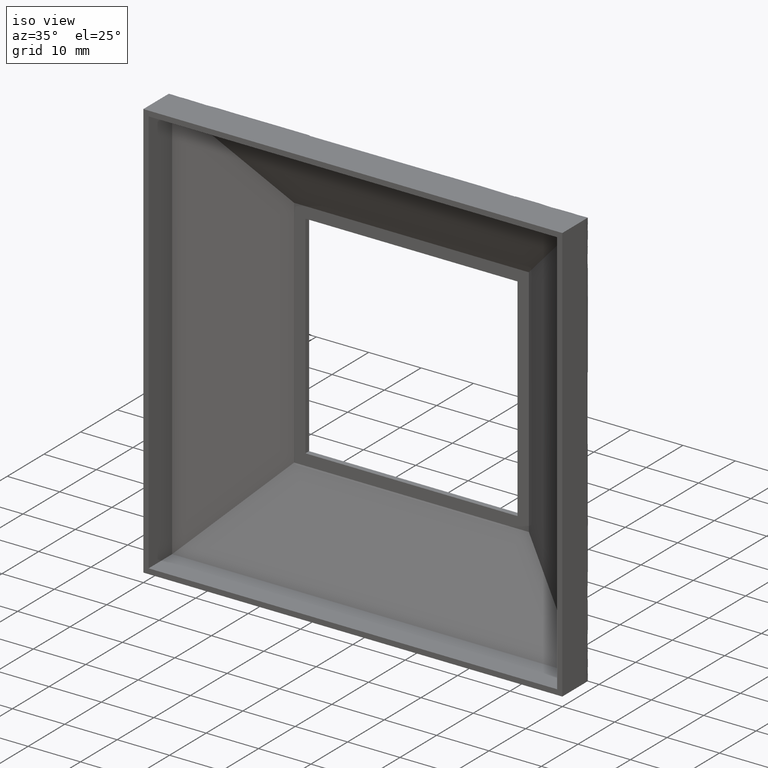
[diagram: clean part render]
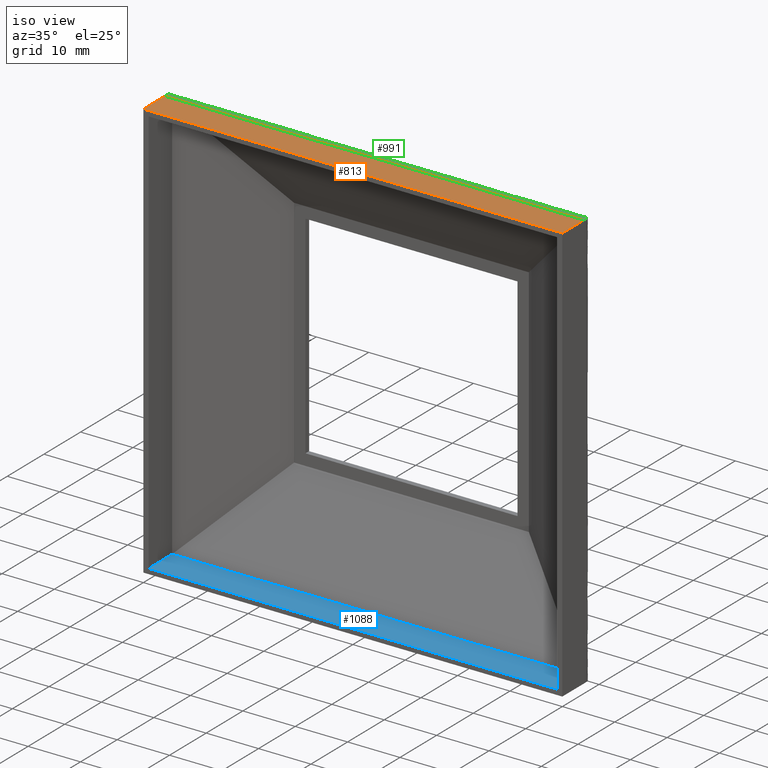
[diagram: same view with three faces highlighted in distinct colors, each labeled with its STEP entity id]
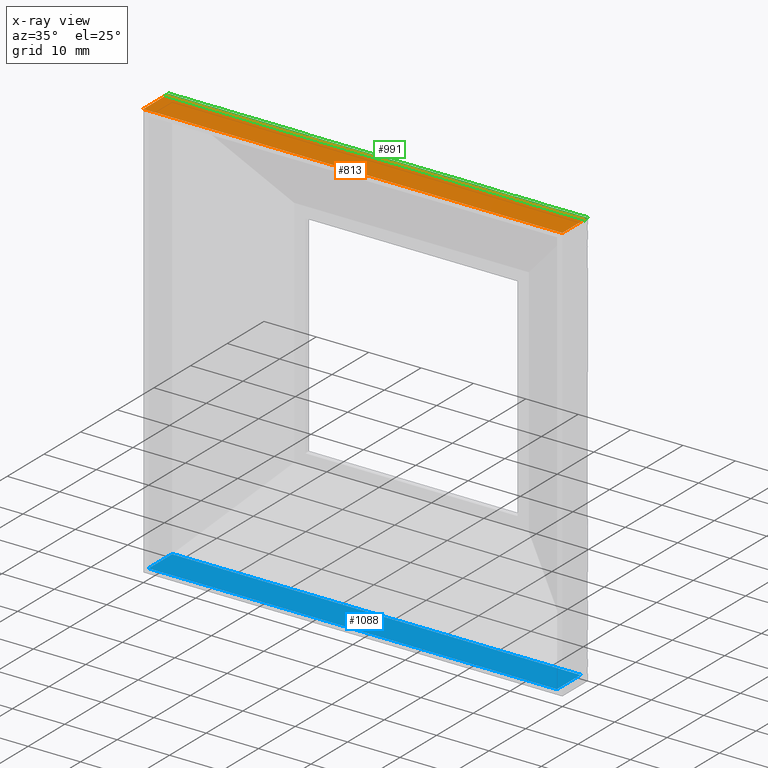
[diagram: x-ray of the same camera — body ghosted, the three highlighted faces saturated]
A machine part, iso view with three faces highlighted in distinct colors.
The next image is the same camera in x-ray (body ghosted, the three faces saturated) — at least one of them is partly hidden behind the body in this view.
Their STEP definitions:

[orange] entity #813 — the highlighted planar face has unit normal (0, 0, -1).
#50 = ORIENTED_EDGE ( 'NONE', *, *, #943, .F. ) ;
#117 = VERTEX_POINT ( 'NONE', #457 ) ;
#145 = ORIENTED_EDGE ( 'NONE', *, *, #489, .T. ) ;
#180 = EDGE_LOOP ( 'NONE', ( #50, #917, #145, #981 ) ) ;
#226 = VECTOR ( 'NONE', #421, 1000.000000000000000 ) ;
#246 = VERTEX_POINT ( 'NONE', #274 ) ;
#264 = FACE_OUTER_BOUND ( 'NONE', #180, .T. ) ;
#274 = CARTESIAN_POINT ( 'NONE',  ( -40.00000000000001400, 0.0000000000000000000, 39.99999999999999300 ) ) ;
#284 = EDGE_CURVE ( 'NONE', #560, #117, #375, .T. ) ;
#320 = AXIS2_PLACEMENT_3D ( 'NONE', #578, #748, #842 ) ;
#375 = B_SPLINE_CURVE_WITH_KNOTS ( 'NONE', 3,
 ( #872, #1052, #433, #928 ),
 .UNSPECIFIED., .F., .F.,
 ( 4, 4 ),
 ( 0.0000000000000000000, 1.000000000000000000 ),
 .UNSPECIFIED. ) ;
#384 = CARTESIAN_POINT ( 'NONE',  ( -40.00000000000001400, 0.0000000000000000000, 39.99999999999999300 ) ) ;
#391 = DIRECTION ( 'NONE',  ( 1.000000000000000000, 0.0000000000000000000, 0.0000000000000000000 ) ) ;
#412 = VECTOR ( 'NONE', #391, 1000.000000000000000 ) ;
#421 = DIRECTION ( 'NONE',  ( -0.0000000000000000000, -1.000000000000000000, -0.0000000000000000000 ) ) ;
#433 = CARTESIAN_POINT ( 'NONE',  ( -13.33333333333334600, 5.845299461620747600, 39.99999999999999300 ) ) ;
#457 = CARTESIAN_POINT ( 'NONE',  ( -40.00000000000001400, 5.845299461620747600, 39.99999999999999300 ) ) ;
#489 = EDGE_CURVE ( 'NONE', #117, #246, #689, .T. ) ;
#499 = VECTOR ( 'NONE', #584, 1000.000000000000000 ) ;
#510 = CARTESIAN_POINT ( 'NONE',  ( 39.99999999999998600, 7.000000000000000000, 39.99999999999999300 ) ) ;
#560 = VERTEX_POINT ( 'NONE', #994 ) ;
#578 = CARTESIAN_POINT ( 'NONE',  ( -40.00000000000001400, 7.000000000000000000, 39.99999999999999300 ) ) ;
#584 = DIRECTION ( 'NONE',  ( -0.0000000000000000000, -1.000000000000000000, -0.0000000000000000000 ) ) ;
#650 = CARTESIAN_POINT ( 'NONE',  ( 39.99999999999998600, 0.0000000000000000000, 39.99999999999999300 ) ) ;
#689 = LINE ( 'NONE', #1031, #226 ) ;
#727 = LINE ( 'NONE', #510, #499 ) ;
#748 = DIRECTION ( 'NONE',  ( 0.0000000000000000000, 0.0000000000000000000, -1.000000000000000000 ) ) ;
#773 = LINE ( 'NONE', #384, #412 ) ;
#813 = ADVANCED_FACE ( 'NONE', ( #264 ), #1097, .F. ) ;
#842 = DIRECTION ( 'NONE',  ( -1.000000000000000000, 0.0000000000000000000, -0.0000000000000000000 ) ) ;
#872 = CARTESIAN_POINT ( 'NONE',  ( 39.99999999999998600, 5.845299461620747600, 39.99999999999999300 ) ) ;
#917 = ORIENTED_EDGE ( 'NONE', *, *, #284, .T. ) ;
#928 = CARTESIAN_POINT ( 'NONE',  ( -40.00000000000001400, 5.845299461620747600, 39.99999999999999300 ) ) ;
#943 = EDGE_CURVE ( 'NONE', #560, #1008, #727, .T. ) ;
#981 = ORIENTED_EDGE ( 'NONE', *, *, #1039, .T. ) ;
#994 = CARTESIAN_POINT ( 'NONE',  ( 39.99999999999998600, 5.845299461620747600, 39.99999999999999300 ) ) ;
#1008 = VERTEX_POINT ( 'NONE', #650 ) ;
#1031 = CARTESIAN_POINT ( 'NONE',  ( -40.00000000000001400, 7.000000000000000000, 39.99999999999999300 ) ) ;
#1039 = EDGE_CURVE ( 'NONE', #246, #1008, #773, .T. ) ;
#1052 = CARTESIAN_POINT ( 'NONE',  ( 13.33333333333331100, 5.845299461620747600, 39.99999999999999300 ) ) ;
#1097 = PLANE ( 'NONE',  #320 ) ;

[blue] entity #1088 — the highlighted planar face has unit normal (0, 0, 1).
#42 = LINE ( 'NONE', #51, #806 ) ;
#51 = CARTESIAN_POINT ( 'NONE',  ( 38.99999999999998600, 7.000000000000000000, -39.00000000000000700 ) ) ;
#52 = VECTOR ( 'NONE', #69, 1000.000000000000000 ) ;
#69 = DIRECTION ( 'NONE',  ( -1.000000000000000000, 0.0000000000000000000, -0.0000000000000000000 ) ) ;
#177 = EDGE_CURVE ( 'NONE', #743, #270, #305, .T. ) ;
#257 = VERTEX_POINT ( 'NONE', #675 ) ;
#270 = VERTEX_POINT ( 'NONE', #967 ) ;
#280 = ORIENTED_EDGE ( 'NONE', *, *, #998, .F. ) ;
#305 = LINE ( 'NONE', #579, #52 ) ;
#329 = DIRECTION ( 'NONE',  ( -0.0000000000000000000, -1.000000000000000000, 0.0000000000000000000 ) ) ;
#333 = DIRECTION ( 'NONE',  ( 0.0000000000000000000, 0.0000000000000000000, 1.000000000000000000 ) ) ;
#334 = CARTESIAN_POINT ( 'NONE',  ( 0.0000000000000000000, -0.0000000000000000000, -39.00000000000000700 ) ) ;
#337 = DIRECTION ( 'NONE',  ( 1.000000000000000000, 0.0000000000000000000, -0.0000000000000000000 ) ) ;
#362 = AXIS2_PLACEMENT_3D ( 'NONE', #666, #333, #337 ) ;
#363 = ORIENTED_EDGE ( 'NONE', *, *, #860, .T. ) ;
#439 = CARTESIAN_POINT ( 'NONE',  ( -39.00000000000001400, 0.0000000000000000000, -39.00000000000000700 ) ) ;
#579 = CARTESIAN_POINT ( 'NONE',  ( 39.99999999999998600, 6.422649730810371200, -39.00000000000000700 ) ) ;
#605 = ORIENTED_EDGE ( 'NONE', *, *, #959, .F. ) ;
#630 = VERTEX_POINT ( 'NONE', #439 ) ;
#666 = CARTESIAN_POINT ( 'NONE',  ( -40.00000000000001400, 7.000000000000000000, -39.00000000000000700 ) ) ;
#675 = CARTESIAN_POINT ( 'NONE',  ( 38.99999999999998600, 0.0000000000000000000, -39.00000000000000700 ) ) ;
#743 = VERTEX_POINT ( 'NONE', #923 ) ;
#756 = VECTOR ( 'NONE', #904, 1000.000000000000000 ) ;
#806 = VECTOR ( 'NONE', #1085, 1000.000000000000000 ) ;
#836 = CARTESIAN_POINT ( 'NONE',  ( -39.00000000000001400, 7.000000000000000000, -39.00000000000000700 ) ) ;
#850 = PLANE ( 'NONE',  #362 ) ;
#860 = EDGE_CURVE ( 'NONE', #270, #630, #948, .T. ) ;
#904 = DIRECTION ( 'NONE',  ( -1.000000000000000000, 0.0000000000000000000, 0.0000000000000000000 ) ) ;
#923 = CARTESIAN_POINT ( 'NONE',  ( 38.99999999999998600, 6.422649730810371200, -39.00000000000000700 ) ) ;
#941 = ORIENTED_EDGE ( 'NONE', *, *, #177, .T. ) ;
#948 = LINE ( 'NONE', #836, #951 ) ;
#951 = VECTOR ( 'NONE', #329, 1000.000000000000000 ) ;
#959 = EDGE_CURVE ( 'NONE', #257, #630, #1047, .T. ) ;
#967 = CARTESIAN_POINT ( 'NONE',  ( -39.00000000000001400, 6.422649730810371200, -39.00000000000000700 ) ) ;
#969 = EDGE_LOOP ( 'NONE', ( #605, #280, #941, #363 ) ) ;
#997 = FACE_OUTER_BOUND ( 'NONE', #969, .T. ) ;
#998 = EDGE_CURVE ( 'NONE', #743, #257, #42, .T. ) ;
#1047 = LINE ( 'NONE', #334, #756 ) ;
#1085 = DIRECTION ( 'NONE',  ( 0.0000000000000000000, -1.000000000000000000, 0.0000000000000000000 ) ) ;
#1088 = ADVANCED_FACE ( 'NONE', ( #997 ), #850, .T. ) ;

[green] entity #991 — the highlighted face is a freeform B-spline surface patch.
#1 = CARTESIAN_POINT ( 'NONE',  ( -39.09123091585236400, 7.524678075363859800, 39.09123091585233600 ) ) ;
#2 = CARTESIAN_POINT ( 'NONE',  ( 39.99999999999998600, 5.845299461620747600, 39.99999999999999300 ) ) ;
#5 = CARTESIAN_POINT ( 'NONE',  ( 39.64549428500631500, 7.203546635178052600, 39.64549428500630100 ) ) ;
#6 = CARTESIAN_POINT ( 'NONE',  ( -39.87809691855075300, 7.064370622308370400, 39.87771418031156400 ) ) ;
#7 = CARTESIAN_POINT ( 'NONE',  ( 39.99996341238345800, 6.085659425924157000, 39.99999723084649600 ) ) ;
#10 = CARTESIAN_POINT ( 'NONE',  ( -39.99751736766462800, 6.764946561274729000, 39.99929109669742600 ) ) ;
#17 = CARTESIAN_POINT ( 'NONE',  ( 39.83371574877211400, 7.092024464092707700, 39.83311883128395400 ) ) ;
#30 = VERTEX_POINT ( 'NONE', #275 ) ;
#33 = CARTESIAN_POINT ( 'NONE',  ( -39.00000000000000700, 7.577350269189627100, 38.99999999999998600 ) ) ;
#35 = CARTESIAN_POINT ( 'NONE',  ( -39.45156041968495900, 7.316284761409308500, 39.45153673475578400 ) ) ;
#64 = CARTESIAN_POINT ( 'NONE',  ( -40.00000000000001400, 5.845299461620747600, 39.99999999999999300 ) ) ;
#90 = CARTESIAN_POINT ( 'NONE',  ( 39.42082463572623400, 7.334093281667203500, 39.42081062329855000 ) ) ;
#91 = CARTESIAN_POINT ( 'NONE',  ( 39.57077457730813600, 7.247088283422290700, 39.57048900840661100 ) ) ;
#95 = CARTESIAN_POINT ( 'NONE',  ( -39.76131484914823500, 7.135506423905171800, 39.75942958104554500 ) ) ;
#102 = CARTESIAN_POINT ( 'NONE',  ( 39.64509293597702600, 7.203780878233273700, 39.64509170071829700 ) ) ;
#106 = CARTESIAN_POINT ( 'NONE',  ( 39.97517742524684100, 6.982355415199969600, 39.97731509431868300 ) ) ;
#117 = VERTEX_POINT ( 'NONE', #457 ) ;
#123 = EDGE_CURVE ( 'NONE', #30, #752, #827, .T. ) ;
#125 = CARTESIAN_POINT ( 'NONE',  ( -39.53478131572512700, 7.268007053435302300, 39.53447339406841400 ) ) ;
#140 = CARTESIAN_POINT ( 'NONE',  ( -14.66666666666669300, 7.577350269189627100, 38.99999999999998600 ) ) ;
#149 = CARTESIAN_POINT ( 'NONE',  ( -39.99957727566572900, 6.442287349026074100, 39.99994461692946100 ) ) ;
#153 = CARTESIAN_POINT ( 'NONE',  ( -39.99996341238347200, 6.085659425924182700, 39.99999723084645400 ) ) ;
#154 = ORIENTED_EDGE ( 'NONE', *, *, #596, .F. ) ;
#176 = CARTESIAN_POINT ( 'NONE',  ( 39.81270341167213200, 7.104799565412038800, 39.81148846067691200 ) ) ;
#178 =( BOUNDED_SURFACE ( )  B_SPLINE_SURFACE ( 2, 3, ( 
 ( #388, #726, #730, #212 ),
 ( #990, #642, #293, #645 ),
 ( #481, #557, #140, #812 ) ),
 .UNSPECIFIED., .F., .F., .T. ) 
 B_SPLINE_SURFACE_WITH_KNOTS ( ( 3, 3 ),
 ( 4, 4 ),
 ( 0.0000000000000000000, 1.000000000000000000 ),
 ( -0.08400000000000000500, 0.004000000000000000100 ),
 .UNSPECIFIED. ) 
 GEOMETRIC_REPRESENTATION_ITEM ( )  RATIONAL_B_SPLINE_SURFACE ( (
 ( 1.000000000000000000, 1.000000000000000000, 1.000000000000000000, 1.000000000000000000),
 ( 17.32050807568875700, 17.32050807568875700, 17.32050807568875700, 17.32050807568875700),
 ( 1.000000000000000000, 1.000000000000000000, 1.000000000000000000, 1.000000000000000000) ) ) 
 REPRESENTATION_ITEM ( '' )  SURFACE ( )  );
#181 = CARTESIAN_POINT ( 'NONE',  ( 39.84356973980662500, 7.085993576816493400, 39.84327415620617100 ) ) ;
#183 = CARTESIAN_POINT ( 'NONE',  ( -39.74141379276093000, 7.147281429885686600, 39.73973045092380100 ) ) ;
#184 = CARTESIAN_POINT ( 'NONE',  ( -39.99902396824695200, 6.596248776930460500, 39.99982277417433400 ) ) ;
#186 = CARTESIAN_POINT ( 'NONE',  ( -39.99042132576797600, 6.922317819495430200, 39.99415154775400800 ) ) ;
#188 = CARTESIAN_POINT ( 'NONE',  ( 39.85835442357306100, 7.076826527202265500, 39.85833009332956300 ) ) ;
#192 = CARTESIAN_POINT ( 'NONE',  ( 39.51678468493357600, 7.278466438441795600, 39.51646558689930100 ) ) ;
#202 = ORIENTED_EDGE ( 'NONE', *, *, #517, .F. ) ;
#212 = CARTESIAN_POINT ( 'NONE',  ( -44.00000000000002800, 5.845299461620747600, 39.99999999999999300 ) ) ;
#253 = CARTESIAN_POINT ( 'NONE',  ( 38.99999999999997900, 7.577350269189627100, 38.99999999999998600 ) ) ;
#256 = CARTESIAN_POINT ( 'NONE',  ( -39.00000000000000700, 7.577350269189627100, 38.99999999999998600 ) ) ;
#261 = CARTESIAN_POINT ( 'NONE',  ( 39.95565794252261300, 7.007990852186007500, 39.95463018863734600 ) ) ;
#263 = CARTESIAN_POINT ( 'NONE',  ( -39.70853835767439200, 7.166629691804799600, 39.70754231421604900 ) ) ;
#269 = CARTESIAN_POINT ( 'NONE',  ( -39.99840422463032000, 6.686804960064426600, 39.99963447173460900 ) ) ;
#271 = CARTESIAN_POINT ( 'NONE',  ( 39.98912708443194900, 6.931546638542998900, 39.99291096697459800 ) ) ;
#272 = CARTESIAN_POINT ( 'NONE',  ( 39.99042132576793300, 6.922317819495413400, 39.99415154775402900 ) ) ;
#275 = CARTESIAN_POINT ( 'NONE',  ( -39.00000000000000700, 7.577350269189627100, 38.99999999999998600 ) ) ;
#284 = EDGE_CURVE ( 'NONE', #560, #117, #375, .T. ) ;
#286 = CARTESIAN_POINT ( 'NONE',  ( -39.67025470056021400, 7.189073698605573900, 39.67008737962260800 ) ) ;
#293 = CARTESIAN_POINT ( 'NONE',  ( -14.66666666666667900, 7.000000000000000900, 39.99999999999999300 ) ) ;
#314 = CARTESIAN_POINT ( 'NONE',  ( 38.99999999999997900, 7.577350269189627100, 38.99999999999998600 ) ) ;
#316 = CARTESIAN_POINT ( 'NONE',  ( -40.00000000000002100, 5.990232302823559800, 40.00000000000000700 ) ) ;
#319 = CARTESIAN_POINT ( 'NONE',  ( -39.99986259767117500, 6.240508034974398700, 39.99998615423236700 ) ) ;
#344 = CARTESIAN_POINT ( 'NONE',  ( 39.38430061226790700, 7.355245143125852500, 39.38410355360567600 ) ) ;
#347 = CARTESIAN_POINT ( 'NONE',  ( -39.89200705829500000, 7.055378498140478300, 39.89082889140854600 ) ) ;
#350 = CARTESIAN_POINT ( 'NONE',  ( 39.99751736766462100, 6.764946561274698800, 39.99929109669745500 ) ) ;
#351 = CARTESIAN_POINT ( 'NONE',  ( -39.94303102127709300, 7.019107698105665700, 39.94045212258647800 ) ) ;
#353 = CARTESIAN_POINT ( 'NONE',  ( 39.86247275930689700, 7.074251190670509900, 39.86247275930691100 ) ) ;
#356 = CARTESIAN_POINT ( 'NONE',  ( -39.98912708443199200, 6.931546638543013100, 39.99291096697458400 ) ) ;
#358 = CARTESIAN_POINT ( 'NONE',  ( 39.99555916357955700, 6.844323200558992700, 39.99822774174364800 ) ) ;
#360 = CARTESIAN_POINT ( 'NONE',  ( 39.09123091585233600, 7.524678075363865100, 39.09123091585232900 ) ) ;
#375 = B_SPLINE_CURVE_WITH_KNOTS ( 'NONE', 3,
 ( #872, #1052, #433, #928 ),
 .UNSPECIFIED., .F., .F.,
 ( 4, 4 ),
 ( 0.0000000000000000000, 1.000000000000000000 ),
 .UNSPECIFIED. ) ;
#378 = CARTESIAN_POINT ( 'NONE',  ( -39.58877120809969300, 7.236628898415800900, 39.58849681557568800 ) ) ;
#388 = CARTESIAN_POINT ( 'NONE',  ( 43.99999999999999300, 5.845299461620747600, 39.99999999999999300 ) ) ;
#409 = B_SPLINE_CURVE_WITH_KNOTS ( 'NONE', 3,
 ( #64, #316, #153, #319, #919, #149, #952, #184, #437, #269, #956, #10, #1041, #522, #607, #866, #701, #186, #356, #443, #780, #861, #351, #1040, #434, #347, #698, #6, #946, #1036, #518, #949, #778, #604, #95, #183, #263, #807, #978, #286, #462, #890, #976, #1065, #378, #125, #541, #627, #548, #35, #633, #1030, #940, #428, #513, #597, #1, #256 ),
 .UNSPECIFIED., .F., .F.,
 ( 4, 2, 2, 2, 2, 2, 2, 2, 2, 2, 2, 2, 2, 2, 1, 2, 2, 2, 2, 2, 1, 2, 2, 2, 2, 1, 1, 2, 2, 2, 4 ),
 ( 0.0000000000000000000, 0.003906250000001252500, 0.007812500000002504900, 0.01562500000000500600, 0.02343750000000751100, 0.03125000000001001300, 0.04687500000001537700, 0.06250000000002074700, 0.09375000000003122500, 0.1250000000000417200, 0.2500000000000630600, 0.3750000000000843800, 0.4375000000001149600, 0.4687500000001214000, 0.4843750000001330600, 0.4921875000001309500, 0.5000000000001287900, 0.5625000000000941500, 0.5937500000000741600, 0.6093750000000639500, 0.6171875000000569500, 0.6210937500000518500, 0.6250000000000466300, 0.6874999999999733500, 0.7187499999999342700, 0.7343749999999168400, 0.7421874999999102900, 0.7460937499999073000, 0.7499999999999041900, 0.8749999999999521500, 1.000000000000000000 ),
 .UNSPECIFIED. ) ;
#426 = EDGE_LOOP ( 'NONE', ( #154, #705, #202, #1123 ) ) ;
#428 = CARTESIAN_POINT ( 'NONE',  ( -39.37957948292938700, 7.357990168095132500, 39.37957948293475900 ) ) ;
#432 = CARTESIAN_POINT ( 'NONE',  ( 39.61165123492553200, 7.223289697585885300, 39.61153802379626400 ) ) ;
#433 = CARTESIAN_POINT ( 'NONE',  ( -13.33333333333334600, 5.845299461620747600, 39.99999999999999300 ) ) ;
#434 = CARTESIAN_POINT ( 'NONE',  ( -39.90782867440396600, 7.044854804303077400, 39.90571586076194400 ) ) ;
#435 = CARTESIAN_POINT ( 'NONE',  ( 39.88657547159331100, 7.059130726600718800, 39.88657547159332500 ) ) ;
#437 = CARTESIAN_POINT ( 'NONE',  ( -39.99882256608204000, 6.630352811135289000, 39.99976739110383100 ) ) ;
#438 = CARTESIAN_POINT ( 'NONE',  ( 39.90894283487896400, 7.044512754529310300, 39.90642476406451100 ) ) ;
#443 = CARTESIAN_POINT ( 'NONE',  ( -39.98218343734280500, 6.970513496206457700, 39.98582193394916100 ) ) ;
#449 = CARTESIAN_POINT ( 'NONE',  ( 39.42977556190546600, 7.328907971101167500, 39.42977556191085100 ) ) ;
#457 = CARTESIAN_POINT ( 'NONE',  ( -40.00000000000001400, 5.845299461620747600, 39.99999999999999300 ) ) ;
#462 = CARTESIAN_POINT ( 'NONE',  ( -39.66103069461726000, 7.194467838310624000, 39.66096807232607100 ) ) ;
#481 = CARTESIAN_POINT ( 'NONE',  ( 43.99999999999999300, 7.577350269189627100, 38.99999999999998600 ) ) ;
#513 = CARTESIAN_POINT ( 'NONE',  ( -39.31801750310690800, 7.393613030765489900, 39.31706422820501200 ) ) ;
#514 = CARTESIAN_POINT ( 'NONE',  ( 39.64152615410345200, 7.205863582545781300, 39.64152033545722300 ) ) ;
#515 = CARTESIAN_POINT ( 'NONE',  ( 39.99902396824695900, 6.596248776930417000, 39.99982277417438300 ) ) ;
#517 = EDGE_CURVE ( 'NONE', #752, #560, #888, .T. ) ;
#518 = CARTESIAN_POINT ( 'NONE',  ( -39.86673021899161300, 7.071578108131816100, 39.86671510250803900 ) ) ;
#521 = CARTESIAN_POINT ( 'NONE',  ( 39.99986259767116100, 6.240508034974361400, 39.99998615423237400 ) ) ;
#522 = CARTESIAN_POINT ( 'NONE',  ( -39.99606809670005700, 6.829461214447474200, 39.99853788693850000 ) ) ;
#525 = CARTESIAN_POINT ( 'NONE',  ( 39.99882256608201900, 6.630352811135248100, 39.99976739110385900 ) ) ;
#541 = CARTESIAN_POINT ( 'NONE',  ( -39.51573587348468700, 7.279065571622101800, 39.51547296126601300 ) ) ;
#548 = CARTESIAN_POINT ( 'NONE',  ( -39.47019857336264400, 7.305481264779079900, 39.47011634517333100 ) ) ;
#557 = CARTESIAN_POINT ( 'NONE',  ( 14.66666666666666400, 7.577350269189627100, 38.99999999999998600 ) ) ;
#560 = VERTEX_POINT ( 'NONE', #994 ) ;
#596 = EDGE_CURVE ( 'NONE', #117, #30, #409, .T. ) ;
#597 = CARTESIAN_POINT ( 'NONE',  ( -39.17403583188111300, 7.476845966874890300, 39.17288994466378700 ) ) ;
#598 = CARTESIAN_POINT ( 'NONE',  ( 39.58772518521781300, 7.237226424501707300, 39.58750418994242900 ) ) ;
#602 = CARTESIAN_POINT ( 'NONE',  ( 39.74350006670750400, 7.146122507496129600, 39.74149007860729900 ) ) ;
#604 = CARTESIAN_POINT ( 'NONE',  ( -39.81475919647045500, 7.103658173132253700, 39.81324808836032500 ) ) ;
#606 = CARTESIAN_POINT ( 'NONE',  ( 39.99999999999997900, 5.990232302823534900, 40.00000000000000700 ) ) ;
#607 = CARTESIAN_POINT ( 'NONE',  ( -39.99555916357959300, 6.844323200559016700, 39.99822774174362600 ) ) ;
#608 = CARTESIAN_POINT ( 'NONE',  ( 39.36194645266780200, 7.368183850759411500, 39.36155769749210300 ) ) ;
#611 = CARTESIAN_POINT ( 'NONE',  ( 39.42586325761528300, 7.331174434499907000, 39.42585819193282500 ) ) ;
#622 = CARTESIAN_POINT ( 'NONE',  ( 38.99999999999997900, 7.577350269189627100, 38.99999999999998600 ) ) ;
#627 = CARTESIAN_POINT ( 'NONE',  ( -39.48563222204729300, 7.296530611197114900, 39.48548337361254600 ) ) ;
#633 = CARTESIAN_POINT ( 'NONE',  ( -39.44344326931793200, 7.320988688594630900, 39.44343445659713900 ) ) ;
#642 = CARTESIAN_POINT ( 'NONE',  ( 14.66666666666665400, 7.000000000000000900, 39.99999999999999300 ) ) ;
#645 = CARTESIAN_POINT ( 'NONE',  ( -44.00000000000003600, 7.000000000000000900, 39.99999999999999300 ) ) ;
#694 = CARTESIAN_POINT ( 'NONE',  ( 39.62324056038167400, 7.216534618919279600, 39.62318270611068300 ) ) ;
#696 = CARTESIAN_POINT ( 'NONE',  ( 39.63613262375771700, 7.209012354710417000, 39.63611675823904100 ) ) ;
#698 = CARTESIAN_POINT ( 'NONE',  ( -39.88651356353854300, 7.058961236040155500, 39.88568934246514900 ) ) ;
#701 = CARTESIAN_POINT ( 'NONE',  ( -39.99284562183921600, 6.897160656430342500, 39.99627825766162200 ) ) ;
#703 = CARTESIAN_POINT ( 'NONE',  ( 39.85255007633598000, 7.080434644442760800, 39.85243969055647300 ) ) ;
#705 = ORIENTED_EDGE ( 'NONE', *, *, #284, .F. ) ;
#706 = CARTESIAN_POINT ( 'NONE',  ( 39.42920558435226800, 7.329238156995718800, 39.42920454259715500 ) ) ;
#723 = CARTESIAN_POINT ( 'NONE',  ( -13.00000000000001800, 7.577350269189627100, 38.99999999999998600 ) ) ;
#726 = CARTESIAN_POINT ( 'NONE',  ( 14.66666666666666400, 5.845299461620747600, 39.99999999999999300 ) ) ;
#730 = CARTESIAN_POINT ( 'NONE',  ( -14.66666666666669300, 5.845299461620747600, 39.99999999999999300 ) ) ;
#752 = VERTEX_POINT ( 'NONE', #314 ) ;
#772 = CARTESIAN_POINT ( 'NONE',  ( 39.47647947002260300, 7.301849039727306600, 39.47647947002799600 ) ) ;
#777 = CARTESIAN_POINT ( 'NONE',  ( 39.94303102127709300, 7.019107698105657700, 39.94045212258650700 ) ) ;
#778 = CARTESIAN_POINT ( 'NONE',  ( -39.84208858250308100, 7.087038888971534300, 39.84208858250308100 ) ) ;
#780 = CARTESIAN_POINT ( 'NONE',  ( -39.97517742524685500, 6.982355415199979400, 39.97731509431864800 ) ) ;
#782 = CARTESIAN_POINT ( 'NONE',  ( 39.99284562183921600, 6.897160656430328300, 39.99627825766166500 ) ) ;
#784 = CARTESIAN_POINT ( 'NONE',  ( 39.99704701742124500, 6.789521749134302700, 39.99906956441542100 ) ) ;
#789 = CARTESIAN_POINT ( 'NONE',  ( 39.69857256299695800, 7.172541223197659300, 39.69857256299696500 ) ) ;
#807 = CARTESIAN_POINT ( 'NONE',  ( -39.69708441395219000, 7.173355136870386100, 39.69637302839262100 ) ) ;
#812 = CARTESIAN_POINT ( 'NONE',  ( -44.00000000000002800, 7.577350269189627100, 38.99999999999998600 ) ) ;
#827 = B_SPLINE_CURVE_WITH_KNOTS ( 'NONE', 3,
 ( #33, #723, #1058, #622 ),
 .UNSPECIFIED., .F., .F.,
 ( 4, 4 ),
 ( 0.0000000000000000000, 1.000000000000000000 ),
 .UNSPECIFIED. ) ;
#855 = CARTESIAN_POINT ( 'NONE',  ( 39.79694441402972400, 7.114274256723208900, 39.79530858592209300 ) ) ;
#858 = CARTESIAN_POINT ( 'NONE',  ( 39.99397599016422300, 6.881696860878968800, 39.99716438678984100 ) ) ;
#861 = CARTESIAN_POINT ( 'NONE',  ( -39.95565794252262000, 7.007990852186015500, 39.95463018863731000 ) ) ;
#862 = CARTESIAN_POINT ( 'NONE',  ( 39.40889043577651300, 7.341005802916917000, 39.40883666468719300 ) ) ;
#866 = CARTESIAN_POINT ( 'NONE',  ( -39.99397599016424500, 6.881696860878987500, 39.99716438678980500 ) ) ;
#869 = CARTESIAN_POINT ( 'NONE',  ( 39.28202208530043300, 7.414421264792842700, 39.28102065731969400 ) ) ;
#871 = CARTESIAN_POINT ( 'NONE',  ( 39.99957727566572900, 6.442287349026027100, 39.99994461692950400 ) ) ;
#872 = CARTESIAN_POINT ( 'NONE',  ( 39.99999999999998600, 5.845299461620747600, 39.99999999999999300 ) ) ;
#888 = B_SPLINE_CURVE_WITH_KNOTS ( 'NONE', 3,
 ( #253, #360, #960, #869, #953, #608, #344, #862, #90, #611, #706, #449, #772, #192, #91, #598, #432, #694, #696, #514, #102, #5, #789, #602, #855, #176, #17, #181, #703, #188, #353, #435, #438, #777, #261, #106, #945, #271, #272, #782, #858, #358, #1046, #784, #350, #947, #1035, #525, #515, #1042, #871, #1038, #521, #7, #606, #2 ),
 .UNSPECIFIED., .F., .F.,
 ( 4, 2, 2, 1, 1, 1, 2, 2, 2, 2, 1, 1, 2, 2, 2, 2, 1, 2, 2, 2, 2, 2, 2, 2, 2, 2, 2, 2, 2, 2, 4 ),
 ( 0.0000000000000000000, 0.1250000000003765900, 0.1875000000005672700, 0.2187500000006566400, 0.2343750000007045800, 0.2421875000007251700, 0.2460937500007318000, 0.2500000000007384100, 0.3125000000007840400, 0.3437500000008094100, 0.3593750000008250100, 0.3671875000008299500, 0.3710937500008323900, 0.3750000000008348300, 0.4375000000008511500, 0.4687500000008593100, 0.4843750000008633600, 0.4921875000008578100, 0.5000000000008522100, 0.6250000000006357100, 0.7500000000004191100, 0.8750000000002025000, 0.9062500000001511000, 0.9375000000000997000, 0.9531250000000746100, 0.9687500000000495200, 0.9765625000000371900, 0.9843750000000248700, 0.9921875000000125500, 0.9960937500000063300, 1.000000000000000000 ),
 .UNSPECIFIED. ) ;
#890 = CARTESIAN_POINT ( 'NONE',  ( -39.65484743836990600, 7.198082394233261500, 39.65483354576328200 ) ) ;
#919 = CARTESIAN_POINT ( 'NONE',  ( -39.99979700383960300, 6.298039662259173000, 39.99997784677176300 ) ) ;
#928 = CARTESIAN_POINT ( 'NONE',  ( -40.00000000000001400, 5.845299461620747600, 39.99999999999999300 ) ) ;
#940 = CARTESIAN_POINT ( 'NONE',  ( -39.43417733085853900, 7.326357709916912600, 39.43417733086389600 ) ) ;
#945 = CARTESIAN_POINT ( 'NONE',  ( 39.98218343734277600, 6.970513496206448800, 39.98582193394918200 ) ) ;
#946 = CARTESIAN_POINT ( 'NONE',  ( -39.87384604254144400, 7.067083187142622500, 39.87366013955013200 ) ) ;
#947 = CARTESIAN_POINT ( 'NONE',  ( 39.99818703393850000, 6.708805419948176600, 39.99955693543592600 ) ) ;
#949 = CARTESIAN_POINT ( 'NONE',  ( -39.86661581383811600, 7.071652109437107600, 39.86661581383809500 ) ) ;
#952 = CARTESIAN_POINT ( 'NONE',  ( -39.99940067373630400, 6.501318209434939100, 39.99991138708716000 ) ) ;
#953 = CARTESIAN_POINT ( 'NONE',  ( 39.31543822633412300, 7.395095323832555000, 39.31467125644479700 ) ) ;
#956 = CARTESIAN_POINT ( 'NONE',  ( -39.99818703393852800, 6.708805419948209400, 39.99955693543590500 ) ) ;
#960 = CARTESIAN_POINT ( 'NONE',  ( 39.17403583188107800, 7.476845966874893900, 39.17288994466378000 ) ) ;
#976 = CARTESIAN_POINT ( 'NONE',  ( -39.65037119973234100, 7.200697809707506300, 39.65037119973231200 ) ) ;
#978 = CARTESIAN_POINT ( 'NONE',  ( -39.67929776365968300, 7.183778898738535400, 39.67895923927616100 ) ) ;
#990 = CARTESIAN_POINT ( 'NONE',  ( 43.99999999999999300, 7.000000000000000900, 39.99999999999999300 ) ) ;
#991 = ADVANCED_FACE ( 'NONE', ( #1002 ), #178, .T. ) ;
#994 = CARTESIAN_POINT ( 'NONE',  ( 39.99999999999998600, 5.845299461620747600, 39.99999999999999300 ) ) ;
#1002 = FACE_OUTER_BOUND ( 'NONE', #426, .T. ) ;
#1030 = CARTESIAN_POINT ( 'NONE',  ( -39.43800384916138300, 7.324140614003480800, 39.43800191827367000 ) ) ;
#1035 = CARTESIAN_POINT ( 'NONE',  ( 39.99840422463027800, 6.686804960064387500, 39.99963447173462300 ) ) ;
#1036 = CARTESIAN_POINT ( 'NONE',  ( -39.86957552146939300, 7.069783747537963200, 39.86950640926181700 ) ) ;
#1038 = CARTESIAN_POINT ( 'NONE',  ( 39.99979700383958200, 6.298039662259130400, 39.99997784677181300 ) ) ;
#1040 = CARTESIAN_POINT ( 'NONE',  ( -39.91746488147848000, 7.038161490423410900, 39.91493160369498100 ) ) ;
#1041 = CARTESIAN_POINT ( 'NONE',  ( -39.99704701742126600, 6.789521749134334700, 39.99906956441540000 ) ) ;
#1042 = CARTESIAN_POINT ( 'NONE',  ( 39.99940067373626800, 6.501318209434890200, 39.99991138708718100 ) ) ;
#1046 = CARTESIAN_POINT ( 'NONE',  ( 39.99606809670004300, 6.829461214447445800, 39.99853788693850000 ) ) ;
#1052 = CARTESIAN_POINT ( 'NONE',  ( 13.33333333333331100, 5.845299461620747600, 39.99999999999999300 ) ) ;
#1058 = CARTESIAN_POINT ( 'NONE',  ( 12.99999999999997700, 7.577350269189627100, 38.99999999999998600 ) ) ;
#1065 = CARTESIAN_POINT ( 'NONE',  ( -39.62054192738081300, 7.218122430726615400, 39.62054192738078500 ) ) ;
#1123 = ORIENTED_EDGE ( 'NONE', *, *, #123, .F. ) ;